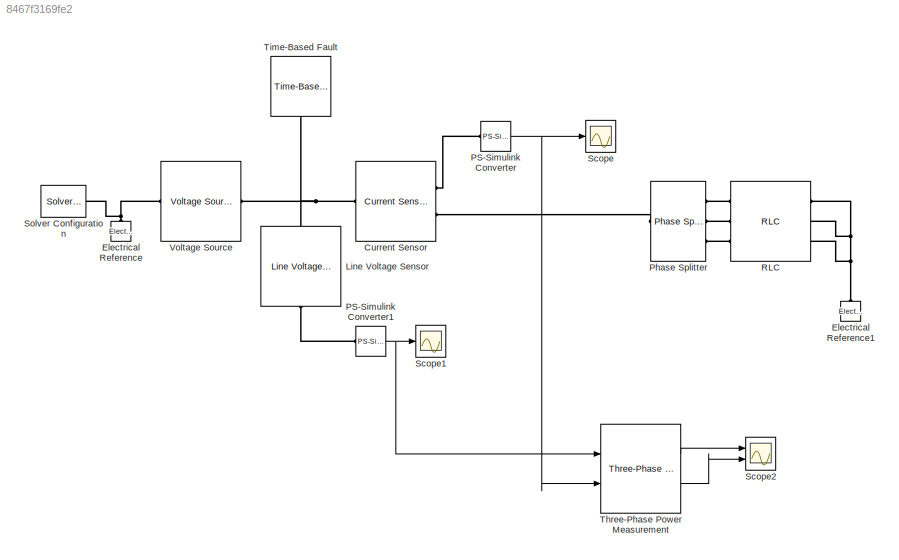
MODEL slx_8467f3169fe2
KIND model
CONFIG AbsTol = auto
CONFIG EnableMultiTasking = off
CONFIG FixedStep = 0.0001
CONFIG MaxStep = auto
CONFIG MinStep = auto
CONFIG RelTol = 1e-3
CONFIG SampleTimeConstraint = Unconstrained
CONFIG Solver = FixedStepAuto
CONFIG SolverName = FixedStepAuto
CONFIG StartTime = 0.0
CONFIG StopTime = 2
BLOCK [Reference] Current Sensor  REF=pe_lib/Sensors/Current Sensor
  Ports = [0, 0, 0, 0, 0, 1, 2]
  SourceBlock = pe_lib/Sensors/Current Sensor
  SourceProductBaseCode = PS
  SourceProductName = Simscape Power Systems
  SourceType = Current Sensor
BLOCK [Reference] Electrical Reference  REF=fl_lib/Electrical/Electrical Elements/Electrical Reference
  Ports = [0, 0, 0, 0, 0, 1]
  SourceBlock = fl_lib/Electrical/Electrical Elements/Electrical Reference
  SourceProductBaseCode = SS
  SourceProductName = Simscape
  SourceType = Electrical Reference
BLOCK [Reference] Electrical Reference1  REF=fl_lib/Electrical/Electrical Elements/Electrical Reference
  Ports = [0, 0, 0, 0, 0, 1]
  SourceBlock = fl_lib/Electrical/Electrical Elements/Electrical Reference
  SourceProductBaseCode = SS
  SourceProductName = Simscape
  SourceType = Electrical Reference
BLOCK [Reference] Line Voltage Sensor  REF=pe_lib/Sensors/Line Voltage Sensor
  Ports = [0, 0, 0, 0, 0, 1, 1]
  SourceBlock = pe_lib/Sensors/Line Voltage Sensor
  SourceProductBaseCode = PS
  SourceProductName = Simscape Power Systems
  SourceType = Line Voltage Sensor
BLOCK [Reference] PS-Simulink Converter  REF=nesl_utility/PS-Simulink
Converter
  Ports = [0, 1, 0, 0, 0, 1]
  SourceBlock = nesl_utility/PS-Simulink\nConverter
  SourceProductBaseCode = SS
  SourceProductName = Simscape
  SourceType = PS-Simulink\nConverter
BLOCK [Reference] PS-Simulink Converter1  REF=nesl_utility/PS-Simulink
Converter
  Ports = [0, 1, 0, 0, 0, 1]
  SourceBlock = nesl_utility/PS-Simulink\nConverter
  SourceProductBaseCode = SS
  SourceProductName = Simscape
  SourceType = PS-Simulink\nConverter
BLOCK [Reference] Phase Splitter  REF=pe_lib/Connections/Phase Splitter
  Ports = [0, 0, 0, 0, 0, 1, 3]
  SourceBlock = pe_lib/Connections/Phase Splitter
  SourceProductBaseCode = PS
  SourceProductName = Simscape Power Systems
  SourceType = Phase Splitter
BLOCK [Reference] RLC  REF=pe_lib/Passive Devices/RLC
  Ports = [0, 0, 0, 0, 0, 3, 3]
  SourceBlock = pe_lib/Passive Devices/RLC
  SourceProductBaseCode = PS
  SourceProductName = Simscape Power Systems
  SourceType = RLC
BLOCK [Scope] Scope
  NumInputPorts = 1
  Ports = [1]
  ScopeSpecificationString = Simulink.scopes.TimeScopeBlockCfg('CurrentConfiguration', extmgr.ConfigurationSet(extmgr.Configuration('Core','General UI',true),extmgr.Configuration('Core','Source UI',true),extmgr.Configuration('Sources','WiredSimulink',true),extmgr.Configuration('Visuals','Time Domain',true,'SerializedDisplays',{struct('MinYLimReal','-42.9731','MaxYLimReal','38.93157','YLabelReal','','MinYLimMag','0.00000','Max...<+1469ch>
BLOCK [Scope] Scope1
  NumInputPorts = 1
  Ports = [1]
  ScopeSpecificationString = Simulink.scopes.TimeScopeBlockCfg('CurrentConfiguration', extmgr.ConfigurationSet(extmgr.Configuration('Core','General UI',true),extmgr.Configuration('Core','Source UI',true),extmgr.Configuration('Sources','WiredSimulink',true,'DataLoggingVariableName','ScopeData1'),extmgr.Configuration('Visuals','Time Domain',true,'SerializedDisplays',{struct('MinYLimReal','-216.28557','MaxYLimReal','216.24584','...<+1499ch>
BLOCK [Scope] Scope2
  NumInputPorts = 2
  Ports = [2]
  ScopeSpecificationString = Simulink.scopes.TimeScopeBlockCfg('CurrentConfiguration', extmgr.ConfigurationSet(extmgr.Configuration('Core','General UI',true),extmgr.Configuration('Core','Source UI',true),extmgr.Configuration('Sources','WiredSimulink',true,'DataLoggingVariableName','ScopeData2'),extmgr.Configuration('Visuals','Time Domain',true,'SerializedDisplays',{struct('MinYLimReal','-281.19417','MaxYLimReal','2530.74754',...<+1692ch>
BLOCK [Reference] Solver Configuration  REF=nesl_utility/Solver
Configuration
  Ports = [0, 0, 0, 0, 0, 0, 1]
  SourceBlock = nesl_utility/Solver\nConfiguration
  SourceProductBaseCode = SS
  SourceProductName = Simscape
  SourceType = Solver\nConfiguration
BLOCK [Reference] Three-Phase Power Measurement  REF=pePowerMeasurement/Three-Phase Power
Measurement
  Ports = [2, 2]
  SourceBlock = pePowerMeasurement/Three-Phase Power\nMeasurement
  SourceType = Three-Phase Power Measurement
BLOCK [Reference] Time-Based Fault  REF=pe_lib/Passive Devices/Faults/Time-Based Fault
  Ports = [0, 0, 0, 0, 0, 1]
  SourceBlock = pe_lib/Passive Devices/Faults/Time-Based Fault
  SourceProductBaseCode = PS
  SourceProductName = Simscape Power Systems
  SourceType = Time-Based Fault
BLOCK [Reference] Voltage Source  REF=pe_lib/Sources/Voltage Source
  Ports = [0, 0, 0, 0, 0, 1, 1]
  SourceBlock = pe_lib/Sources/Voltage Source
  SourceProductBaseCode = PS
  SourceProductName = Simscape Power Systems
  SourceType = Voltage Source
NET PS-Simulink Converter1:1 -> Scope1:1, Three-Phase Power Measurement:1
NET PS-Simulink Converter:1 -> Scope:1, Three-Phase Power Measurement:2
LINE Three-Phase Power Measurement:1 -> Scope2:1
LINE Three-Phase Power Measurement:2 -> Scope2:2
PNET net1: Current Sensor:LConn1 -- Line Voltage Sensor:LConn1 -- Time-Based Fault:LConn1 -- Voltage Source:RConn1
PLINE Current Sensor:RConn1 -- PS-Simulink Converter:LConn1
PLINE Current Sensor:RConn2 -- Phase Splitter:LConn1
PNET net2: Electrical Reference1:LConn1 -- RLC:RConn1 -- RLC:RConn2 -- RLC:RConn3
PNET net3: Electrical Reference:LConn1 -- Solver Configuration:RConn1 -- Voltage Source:LConn1
PLINE Line Voltage Sensor:RConn1 -- PS-Simulink Converter1:LConn1
PLINE Phase Splitter:RConn1 -- RLC:LConn1
PLINE Phase Splitter:RConn2 -- RLC:LConn2
PLINE Phase Splitter:RConn3 -- RLC:LConn3
note: NET lines group one-source signal fan-out (src -> all destinations, sorted); 1:1 wires keep LINE; PNET lines group multi-terminal physical nets as a canonical sorted terminal list (undirected conserving connections); 2-terminal nets keep the pairwise PLINE form
